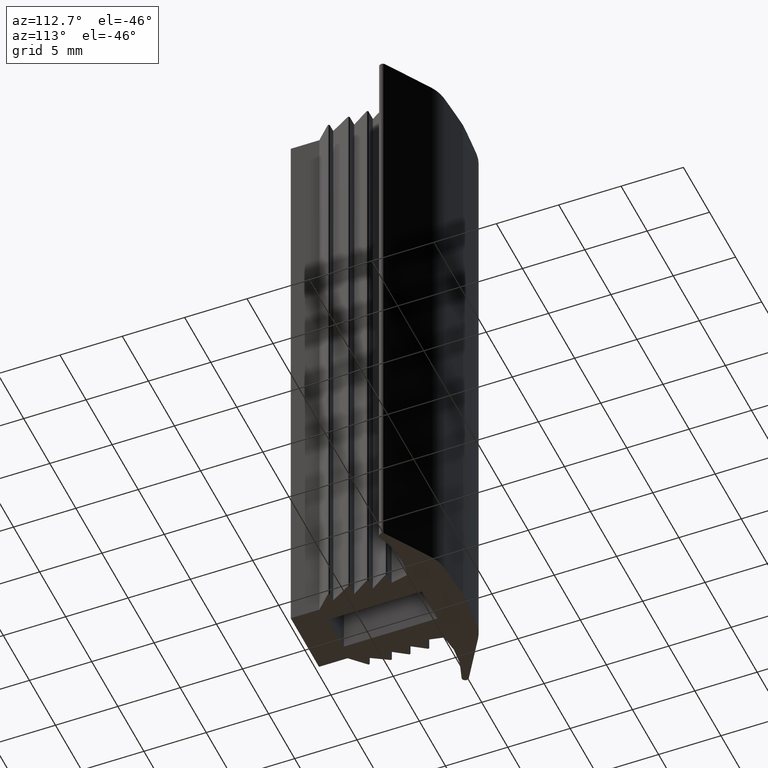
[diagram: clean part render]
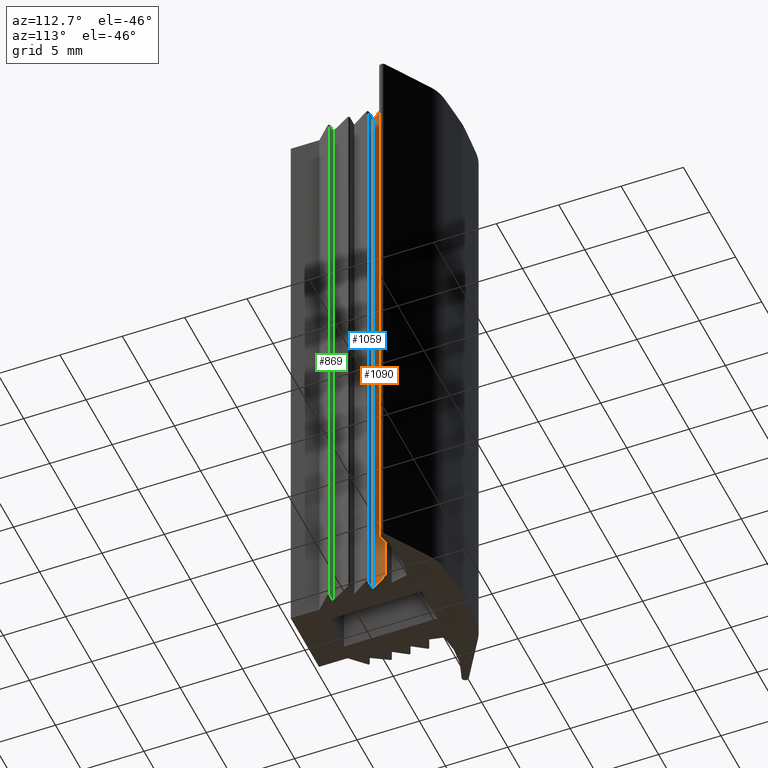
[diagram: same view with three faces highlighted in distinct colors, each labeled with its STEP entity id]
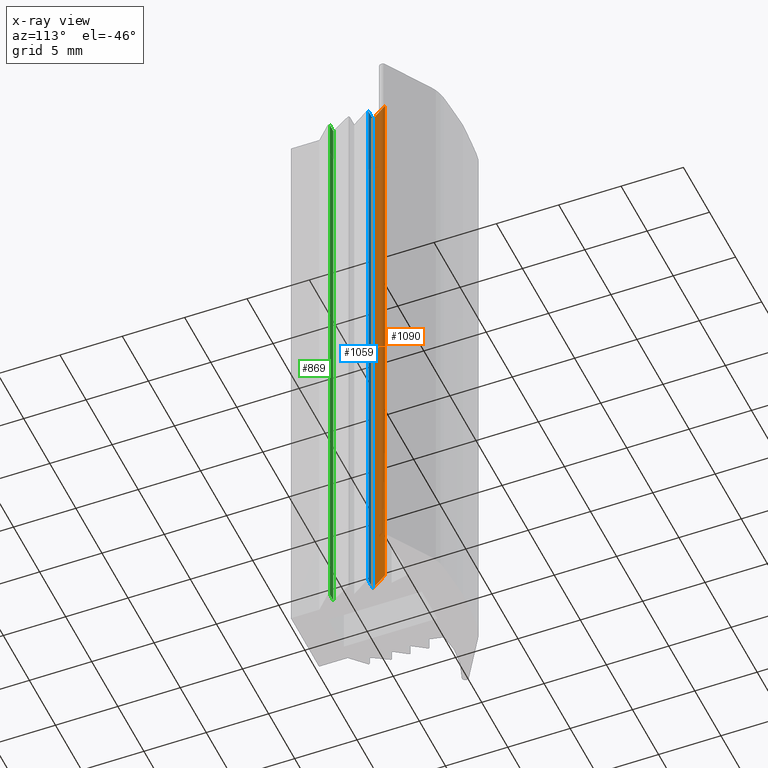
[diagram: x-ray of the same camera — body ghosted, the three highlighted faces saturated]
A machine part, auxiliary view with three faces highlighted in distinct colors.
The next image is the same camera in x-ray (body ghosted, the three faces saturated) — at least one of them is partly hidden behind the body in this view.
Their STEP definitions:

[orange] entity #1090 — the highlighted planar face has unit normal (0.8307, -0.5567, 0).
#1034=CARTESIAN_POINT('',(3.189815244602869,6.792629753981601,0.0));
#1035=VERTEX_POINT('',#1034);
#1042=CARTESIAN_POINT('',(3.189815244602869,6.792629753981601,50.0));
#1043=VERTEX_POINT('',#1042);
#1044=CARTESIAN_POINT('',(3.189815244602869,6.792629753981601,0.0));
#1045=DIRECTION('',(0.0,0.0,1.0));
#1046=VECTOR('',#1045,50.0);
#1047=LINE('',#1044,#1046);
#1048=EDGE_CURVE('',#1035,#1043,#1047,.T.);
#1060=CARTESIAN_POINT('',(3.189815244602869,6.792629753981601,0.0));
#1061=DIRECTION('',(0.830708944488500,-0.556706969191875,0.0));
#1062=DIRECTION('',(0.556706969191875,0.830708944488500,0.0));
#1063=AXIS2_PLACEMENT_3D('',#1060,#1061,#1062);
#1064=PLANE('',#1063);
#1065=CARTESIAN_POINT('',(4.093784821583085,8.141518226193512,0.0));
#1066=VERTEX_POINT('',#1065);
#1067=CARTESIAN_POINT('',(3.189815244602869,6.792629753981601,0.0));
#1068=DIRECTION('',(0.556706969191875,0.830708944488500,0.0));
#1069=VECTOR('',#1068,1.623779882426179);
#1070=LINE('',#1067,#1069);
#1071=EDGE_CURVE('',#1035,#1066,#1070,.T.);
#1072=ORIENTED_EDGE('',*,*,#1071,.T.);
#1073=CARTESIAN_POINT('',(4.093784821583085,8.141518226193512,50.0));
#1074=VERTEX_POINT('',#1073);
#1075=CARTESIAN_POINT('',(4.093784821583085,8.141518226193512,0.0));
#1076=DIRECTION('',(0.0,0.0,1.0));
#1077=VECTOR('',#1076,50.0);
#1078=LINE('',#1075,#1077);
#1079=EDGE_CURVE('',#1066,#1074,#1078,.T.);
#1080=ORIENTED_EDGE('',*,*,#1079,.T.);
#1081=CARTESIAN_POINT('',(3.189815244602869,6.792629753981601,50.0));
#1082=DIRECTION('',(0.556706969191875,0.830708944488500,0.0));
#1083=VECTOR('',#1082,1.623779882426179);
#1084=LINE('',#1081,#1083);
#1085=EDGE_CURVE('',#1043,#1074,#1084,.T.);
#1086=ORIENTED_EDGE('',*,*,#1085,.F.);
#1087=ORIENTED_EDGE('',*,*,#1048,.F.);
#1088=EDGE_LOOP('',(#1072,#1080,#1086,#1087));
#1089=FACE_OUTER_BOUND('',#1088,.T.);
#1090=ADVANCED_FACE('',(#1089),#1064,.T.);

[blue] entity #1059 — the highlighted planar face has unit normal (0, 1, 0).
#1001=CARTESIAN_POINT('',(4.007832173488623,6.792629753981601,0.0));
#1002=VERTEX_POINT('',#1001);
#1010=CARTESIAN_POINT('',(4.007832173488623,6.792629753981601,50.0));
#1011=VERTEX_POINT('',#1010);
#1012=CARTESIAN_POINT('',(4.007832173488623,6.792629753981601,0.0));
#1013=DIRECTION('',(0.0,0.0,1.0));
#1014=VECTOR('',#1013,50.0);
#1015=LINE('',#1012,#1014);
#1016=EDGE_CURVE('',#1002,#1011,#1015,.T.);
#1029=CARTESIAN_POINT('',(4.007832173488623,6.792629753981601,0.0));
#1030=DIRECTION('',(0.0,1.0,0.0));
#1031=DIRECTION('',(-1.0,0.0,0.0));
#1032=AXIS2_PLACEMENT_3D('',#1029,#1030,#1031);
#1033=PLANE('',#1032);
#1034=CARTESIAN_POINT('',(3.189815244602869,6.792629753981601,0.0));
#1035=VERTEX_POINT('',#1034);
#1036=CARTESIAN_POINT('',(4.007832173488623,6.792629753981601,0.0));
#1037=DIRECTION('',(-1.0,0.0,0.0));
#1038=VECTOR('',#1037,0.818016928885754);
#1039=LINE('',#1036,#1038);
#1040=EDGE_CURVE('',#1002,#1035,#1039,.T.);
#1041=ORIENTED_EDGE('',*,*,#1040,.T.);
#1042=CARTESIAN_POINT('',(3.189815244602869,6.792629753981601,50.0));
#1043=VERTEX_POINT('',#1042);
#1044=CARTESIAN_POINT('',(3.189815244602869,6.792629753981601,0.0));
#1045=DIRECTION('',(0.0,0.0,1.0));
#1046=VECTOR('',#1045,50.0);
#1047=LINE('',#1044,#1046);
#1048=EDGE_CURVE('',#1035,#1043,#1047,.T.);
#1049=ORIENTED_EDGE('',*,*,#1048,.T.);
#1050=CARTESIAN_POINT('',(4.007832173488623,6.792629753981601,50.0));
#1051=DIRECTION('',(-1.0,0.0,0.0));
#1052=VECTOR('',#1051,0.818016928885754);
#1053=LINE('',#1050,#1052);
#1054=EDGE_CURVE('',#1011,#1043,#1053,.T.);
#1055=ORIENTED_EDGE('',*,*,#1054,.F.);
#1056=ORIENTED_EDGE('',*,*,#1016,.F.);
#1057=EDGE_LOOP('',(#1041,#1049,#1055,#1056));
#1058=FACE_OUTER_BOUND('',#1057,.T.);
#1059=ADVANCED_FACE('',(#1058),#1033,.T.);

[green] entity #869 — the highlighted planar face has unit normal (0, 1, 0).
#811=CARTESIAN_POINT('',(3.806669745815725,3.607841843585447,0.0));
#812=VERTEX_POINT('',#811);
#820=CARTESIAN_POINT('',(3.806669745815725,3.607841843585447,50.0));
#821=VERTEX_POINT('',#820);
#822=CARTESIAN_POINT('',(3.806669745815725,3.607841843585447,0.0));
#823=DIRECTION('',(0.0,0.0,1.0));
#824=VECTOR('',#823,50.0);
#825=LINE('',#822,#824);
#826=EDGE_CURVE('',#812,#821,#825,.T.);
#839=CARTESIAN_POINT('',(3.806669745815725,3.607841843585447,0.0));
#840=DIRECTION('',(0.0,1.0,0.0));
#841=DIRECTION('',(-1.0,0.0,0.0));
#842=AXIS2_PLACEMENT_3D('',#839,#840,#841);
#843=PLANE('',#842);
#844=CARTESIAN_POINT('',(3.189815244602869,3.607841843585447,0.0));
#845=VERTEX_POINT('',#844);
#846=CARTESIAN_POINT('',(3.806669745815725,3.607841843585447,0.0));
#847=DIRECTION('',(-1.0,0.0,0.0));
#848=VECTOR('',#847,0.616854501212856);
#849=LINE('',#846,#848);
#850=EDGE_CURVE('',#812,#845,#849,.T.);
#851=ORIENTED_EDGE('',*,*,#850,.T.);
#852=CARTESIAN_POINT('',(3.189815244602869,3.607841843585447,50.0));
#853=VERTEX_POINT('',#852);
#854=CARTESIAN_POINT('',(3.189815244602869,3.607841843585447,0.0));
#855=DIRECTION('',(0.0,0.0,1.0));
#856=VECTOR('',#855,50.0);
#857=LINE('',#854,#856);
#858=EDGE_CURVE('',#845,#853,#857,.T.);
#859=ORIENTED_EDGE('',*,*,#858,.T.);
#860=CARTESIAN_POINT('',(3.806669745815725,3.607841843585447,50.0));
#861=DIRECTION('',(-1.0,0.0,0.0));
#862=VECTOR('',#861,0.616854501212856);
#863=LINE('',#860,#862);
#864=EDGE_CURVE('',#821,#853,#863,.T.);
#865=ORIENTED_EDGE('',*,*,#864,.F.);
#866=ORIENTED_EDGE('',*,*,#826,.F.);
#867=EDGE_LOOP('',(#851,#859,#865,#866));
#868=FACE_OUTER_BOUND('',#867,.T.);
#869=ADVANCED_FACE('',(#868),#843,.T.);